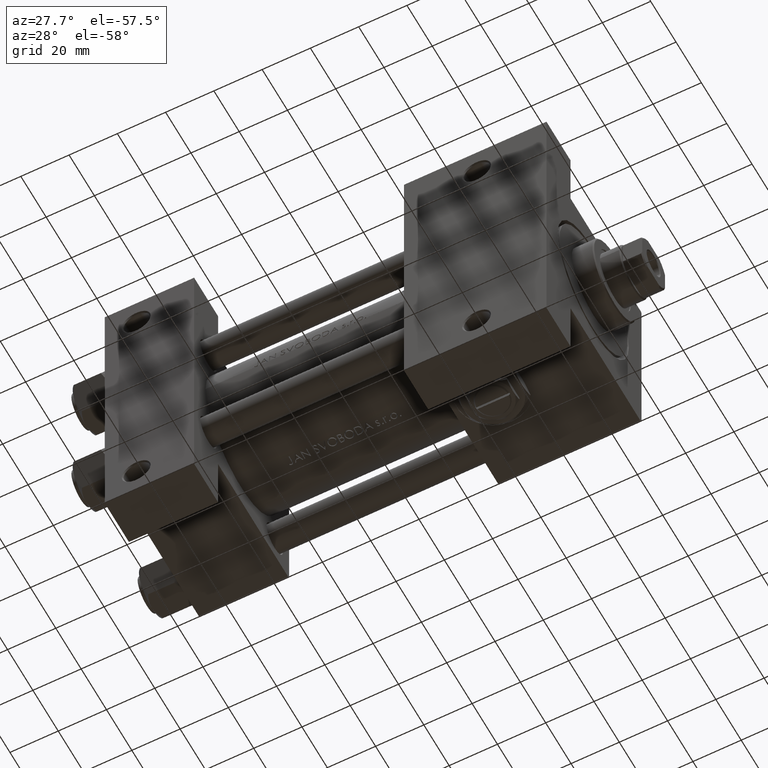
[diagram: clean part render]
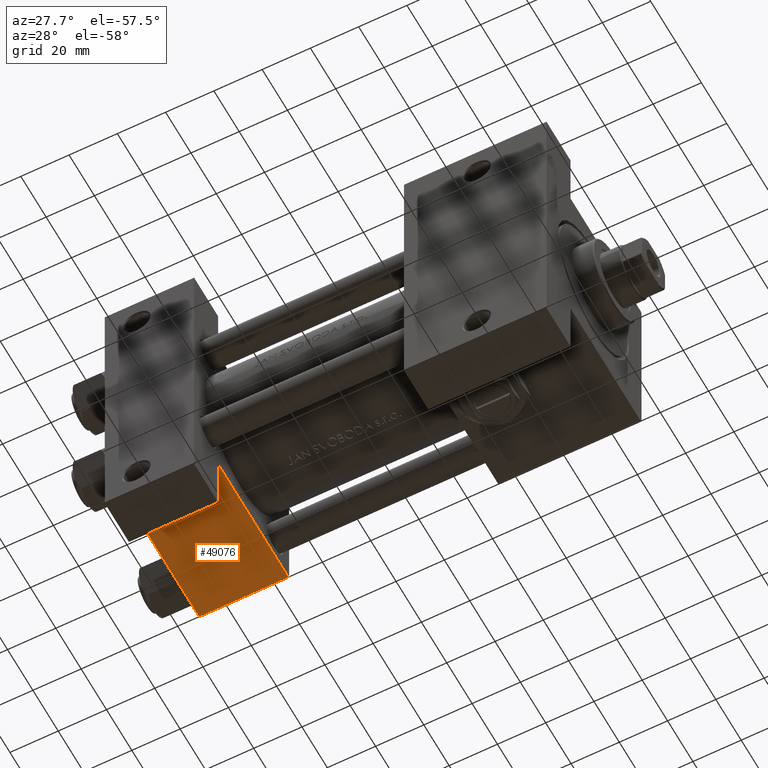
[diagram: same view with one face highlighted and labeled with its STEP entity id]
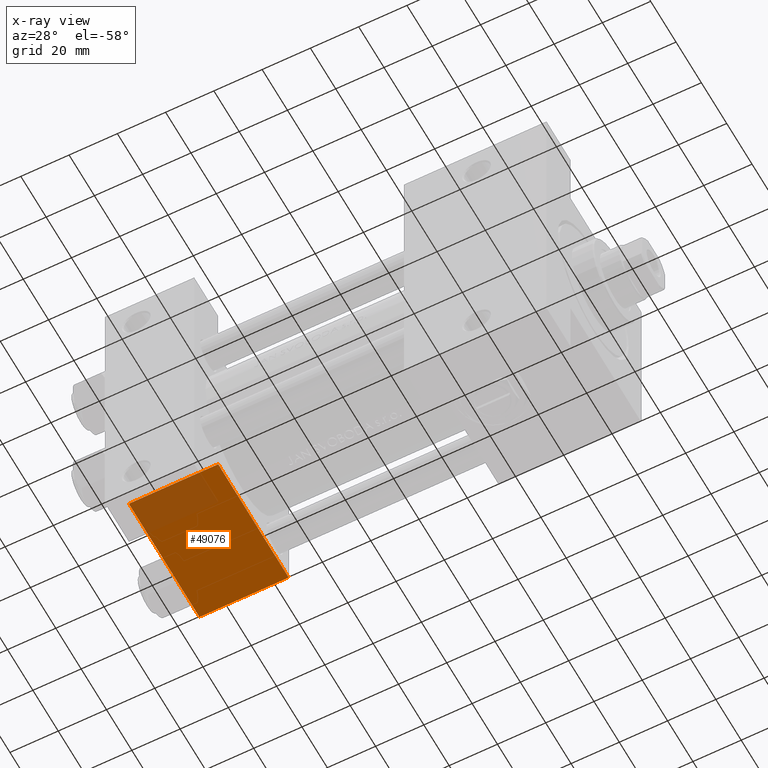
[diagram: x-ray of the same camera — body ghosted, the highlighted face saturated]
A machine part, auxiliary view. The second image highlights one B-rep face of the part: STEP entity #49076.
The next image is the same camera in x-ray: the body ghosted, the highlighted face saturated — about 21% of this face is hidden behind the body in this view.
In plain terms, the highlighted planar face has unit normal (0, 0, -1).
Its self-contained STEP definition (entity closure, byte-faithful):
#469 = LINE ( 'NONE', #38280, #44515 ) ;
#1415 = LINE ( 'NONE', #39478, #19071 ) ;
#4764 = CARTESIAN_POINT ( 'NONE',  ( 37.00000000000000000, 37.49999999999999289, 37.50000000000000000 ) ) ;
#4830 = CARTESIAN_POINT ( 'NONE',  ( 37.00000000000000000, 37.49999999999999289, 37.00000000000000000 ) ) ;
#6280 = LINE ( 'NONE', #40123, #41993 ) ;
#8272 = DIRECTION ( 'NONE',  ( 0.000000000000000000, -0.000000000000000000, 1.000000000000000000 ) ) ;
#11385 = EDGE_CURVE ( 'NONE', #40768, #25427, #18466, .T. ) ;
#12488 = DIRECTION ( 'NONE',  ( -0.000000000000000000, 1.000000000000000000, 0.000000000000000000 ) ) ;
#14254 = DIRECTION ( 'NONE',  ( 0.000000000000000000, 0.000000000000000000, -1.000000000000000000 ) ) ;
#15180 = ORIENTED_EDGE ( 'NONE', *, *, #18786, .F. ) ;
#16077 = VERTEX_POINT ( 'NONE', #38256 ) ;
#16260 = AXIS2_PLACEMENT_3D ( 'NONE', #4764, #12488, #8272 ) ;
#16938 = ORIENTED_EDGE ( 'NONE', *, *, #11385, .T. ) ;
#18466 = LINE ( 'NONE', #45559, #47449 ) ;
#18786 = EDGE_CURVE ( 'NONE', #40768, #16077, #6280, .T. ) ;
#19071 = VECTOR ( 'NONE', #43725, 1000.000000000000000 ) ;
#22142 = EDGE_CURVE ( 'NONE', #16077, #34666, #469, .T. ) ;
#24438 = PLANE ( 'NONE',  #16260 ) ;
#25427 = VERTEX_POINT ( 'NONE', #4830 ) ;
#28468 = CARTESIAN_POINT ( 'NONE',  ( 0.000000000000000000, 37.49999999999999289, 37.00000000000000000 ) ) ;
#28662 = EDGE_LOOP ( 'NONE', ( #38644, #15180, #16938, #29461 ) ) ;
#29461 = ORIENTED_EDGE ( 'NONE', *, *, #38325, .T. ) ;
#31333 = DIRECTION ( 'NONE',  ( 1.000000000000000000, -3.750753461571474945E-16, 0.000000000000000000 ) ) ;
#34666 = VERTEX_POINT ( 'NONE', #42773 ) ;
#38256 = CARTESIAN_POINT ( 'NONE',  ( 0.000000000000000000, 37.49999999999999289, -18.49999999999999645 ) ) ;
#38280 = CARTESIAN_POINT ( 'NONE',  ( 8.470280871287256020E-15, 37.50000000000002842, -18.49999999999999645 ) ) ;
#38325 = EDGE_CURVE ( 'NONE', #25427, #34666, #1415, .T. ) ;
#38644 = ORIENTED_EDGE ( 'NONE', *, *, #22142, .F. ) ;
#39478 = CARTESIAN_POINT ( 'NONE',  ( 37.00000000000000000, 37.49999999999999289, 37.50000000000000000 ) ) ;
#40123 = CARTESIAN_POINT ( 'NONE',  ( 0.000000000000000000, 37.49999999999999289, 37.50000000000000000 ) ) ;
#40768 = VERTEX_POINT ( 'NONE', #28468 ) ;
#41553 = DIRECTION ( 'NONE',  ( 1.000000000000000000, 0.000000000000000000, 0.000000000000000000 ) ) ;
#41993 = VECTOR ( 'NONE', #14254, 1000.000000000000000 ) ;
#42773 = CARTESIAN_POINT ( 'NONE',  ( 37.00000000000000711, 37.50000000000000711, -18.50000000000000355 ) ) ;
#43725 = DIRECTION ( 'NONE',  ( 0.000000000000000000, 0.000000000000000000, -1.000000000000000000 ) ) ;
#44515 = VECTOR ( 'NONE', #31333, 1000.000000000000000 ) ;
#45559 = CARTESIAN_POINT ( 'NONE',  ( 37.00000000000000000, 37.49999999999999289, 37.00000000000000000 ) ) ;
#47089 = FACE_OUTER_BOUND ( 'NONE', #28662, .T. ) ;
#47449 = VECTOR ( 'NONE', #41553, 1000.000000000000000 ) ;
#49076 = ADVANCED_FACE ( 'NONE', ( #47089 ), #24438, .T. ) ;